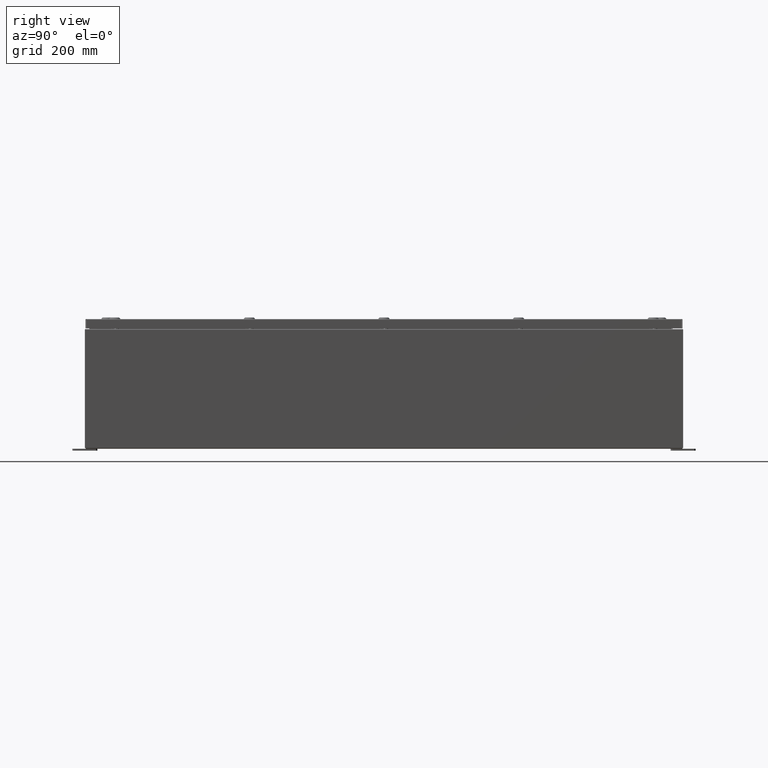
[diagram: clean part render]
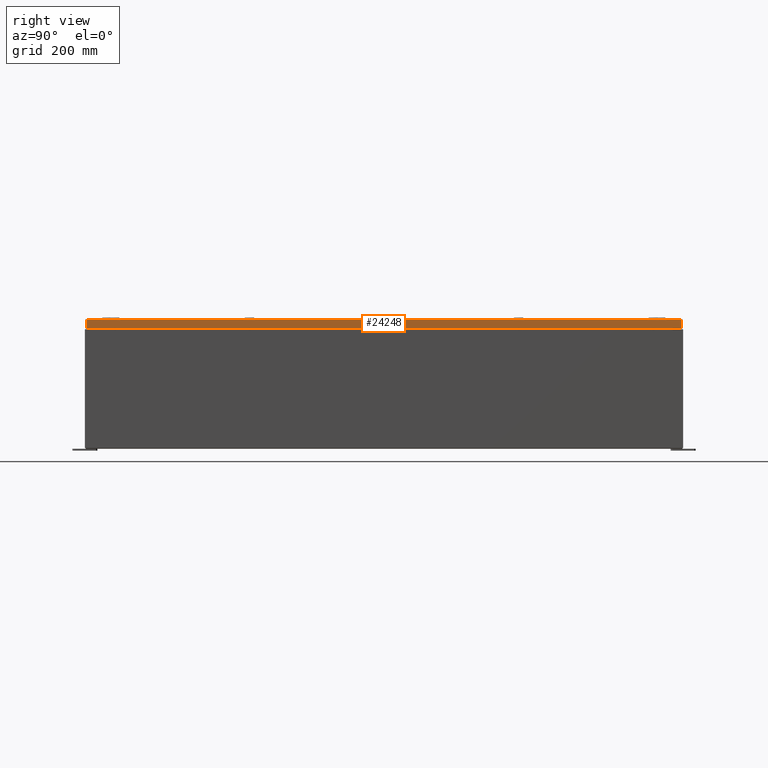
[diagram: same view with one face highlighted and labeled with its STEP entity id]
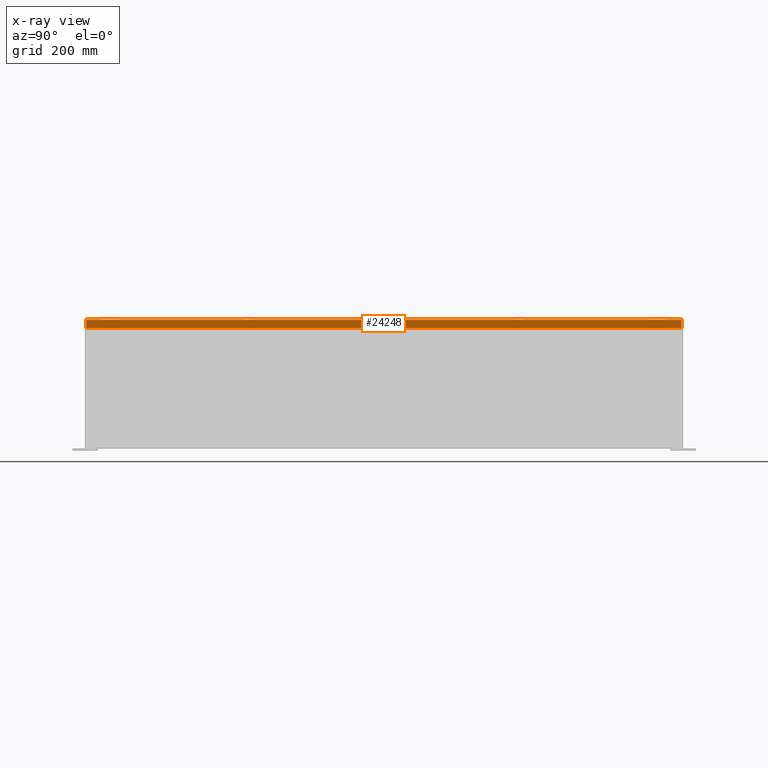
[diagram: x-ray of the same camera — body ghosted, the highlighted face saturated]
A machine part, right view. The second image highlights one B-rep face of the part: STEP entity #24248.
The next image is the same camera in x-ray: the body ghosted, the highlighted face saturated — about 0% of this face is hidden behind the body in this view.
In plain terms, the highlighted planar face has unit normal (1, 0, 0).
Its self-contained STEP definition (entity closure, byte-faithful):
#1998 = ORIENTED_EDGE ( 'NONE', *, *, #30614, .T. ) ;
#6104 = ORIENTED_EDGE ( 'NONE', *, *, #28345, .F. ) ;
#8309 = VERTEX_POINT ( 'NONE', #29682 ) ;
#16368 = CARTESIAN_POINT ( 'NONE',  ( 17.93750000000000000, 0.0000000000000000000, -0.08770000000000008300 ) ) ;
#16370 = EDGE_CURVE ( 'NONE', #48494, #55639, #51387, .T. ) ;
#19097 = EDGE_CURVE ( 'NONE', #8309, #35755, #56229, .T. ) ;
#21804 = CARTESIAN_POINT ( 'NONE',  ( 17.93750000000000000, 29.84865786437627500, 2.541181598995237700E-013 ) ) ;
#22658 = LINE ( 'NONE', #16368, #31801 ) ;
#23285 = CARTESIAN_POINT ( 'NONE',  ( 17.93750000000000000, 29.84865786437627500, -0.08770000000000008300 ) ) ;
#24248 = ADVANCED_FACE ( 'NONE', ( #64823 ), #59478, .T. ) ;
#26258 = CARTESIAN_POINT ( 'NONE',  ( 17.93750000000000000, -29.84865786437626100, -0.07469999999999980800 ) ) ;
#26310 = VECTOR ( 'NONE', #53810, 39.37007874015748100 ) ;
#27794 = VECTOR ( 'NONE', #58235, 39.37007874015748100 ) ;
#28345 = EDGE_CURVE ( 'NONE', #48494, #8309, #45337, .T. ) ;
#29372 = ORIENTED_EDGE ( 'NONE', *, *, #16370, .T. ) ;
#29682 = CARTESIAN_POINT ( 'NONE',  ( 17.93750000000000000, -29.84865786437625700, -0.9376999999999996400 ) ) ;
#30614 = EDGE_CURVE ( 'NONE', #55639, #35755, #22658, .T. ) ;
#31801 = VECTOR ( 'NONE', #48818, 39.37007874015748100 ) ;
#32620 = CARTESIAN_POINT ( 'NONE',  ( 17.93750000000000000, 0.0000000000000000000, 4.568609605355755400E-014 ) ) ;
#32855 = DIRECTION ( 'NONE',  ( 2.532419924601866100E-015, 0.0000000000000000000, -1.000000000000000000 ) ) ;
#33650 = DIRECTION ( 'NONE',  ( 0.0000000000000000000, -1.000000000000000000, 0.0000000000000000000 ) ) ;
#35755 = VERTEX_POINT ( 'NONE', #51314 ) ;
#37289 = CARTESIAN_POINT ( 'NONE',  ( 17.93750000000000000, 29.84865786437627800, -0.9376999999999997600 ) ) ;
#38530 = ORIENTED_EDGE ( 'NONE', *, *, #19097, .F. ) ;
#39464 = CARTESIAN_POINT ( 'NONE',  ( 17.93750000000000000, -29.93749999999998900, -0.9376999999999997600 ) ) ;
#45337 = LINE ( 'NONE', #39464, #56228 ) ;
#48494 = VERTEX_POINT ( 'NONE', #37289 ) ;
#48818 = DIRECTION ( 'NONE',  ( 0.0000000000000000000, -1.000000000000000000, 0.0000000000000000000 ) ) ;
#51314 = CARTESIAN_POINT ( 'NONE',  ( 17.93750000000000000, -29.84865786437626100, -0.08770000000000008300 ) ) ;
#51387 = LINE ( 'NONE', #21804, #26310 ) ;
#53810 = DIRECTION ( 'NONE',  ( -2.532419924601866100E-015, -6.982962677686269100E-015, 1.000000000000000000 ) ) ;
#55639 = VERTEX_POINT ( 'NONE', #23285 ) ;
#56228 = VECTOR ( 'NONE', #33650, 39.37007874015748100 ) ;
#56229 = LINE ( 'NONE', #26258, #27794 ) ;
#58235 = DIRECTION ( 'NONE',  ( -2.532419924601866100E-015, -6.982962677686269100E-015, 1.000000000000000000 ) ) ;
#59478 = PLANE ( 'NONE',  #63239 ) ;
#61555 = EDGE_LOOP ( 'NONE', ( #38530, #6104, #29372, #1998 ) ) ;
#63239 = AXIS2_PLACEMENT_3D ( 'NONE', #32620, #64828, #32855 ) ;
#64823 = FACE_OUTER_BOUND ( 'NONE', #61555, .T. ) ;
#64828 = DIRECTION ( 'NONE',  ( 1.000000000000000000, 0.0000000000000000000, 2.532419924601866100E-015 ) ) ;